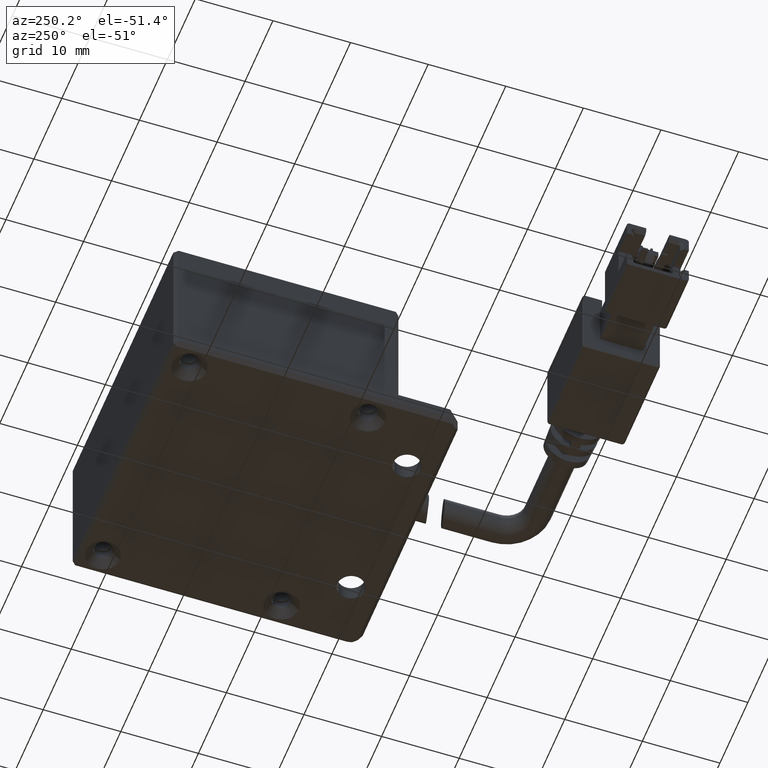
[diagram: clean part render]
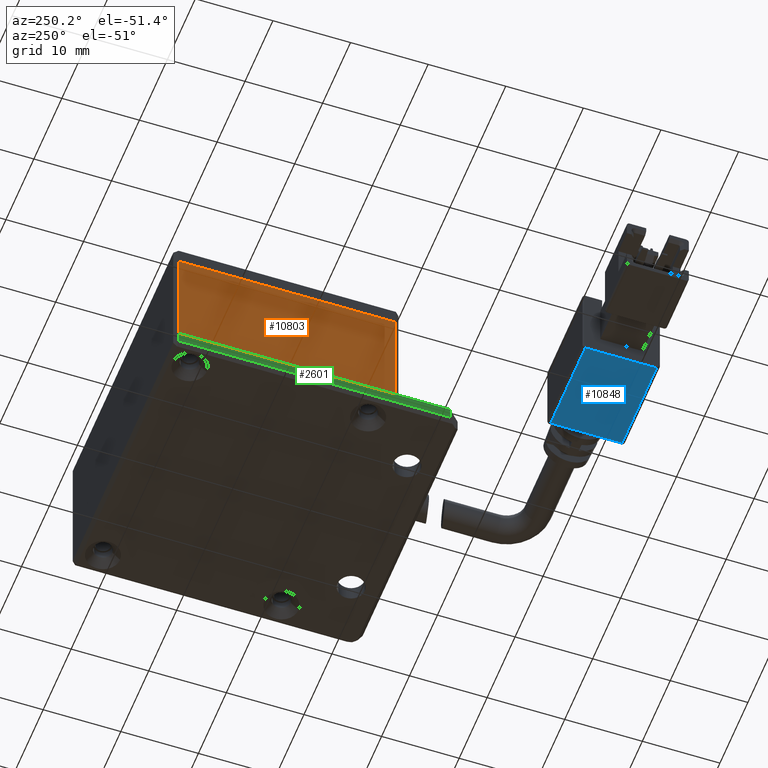
[diagram: same view with three faces highlighted in distinct colors, each labeled with its STEP entity id]
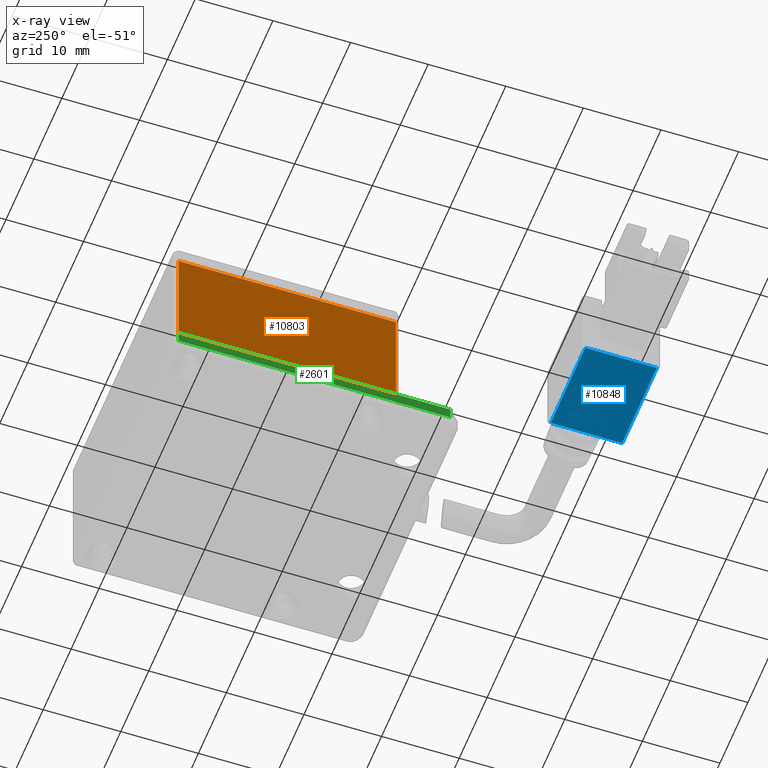
[diagram: x-ray of the same camera — body ghosted, the three highlighted faces saturated]
A machine part, auxiliary view with three faces highlighted in distinct colors.
The next image is the same camera in x-ray (body ghosted, the three faces saturated) — at least one of them is partly hidden behind the body in this view.
Their STEP definitions:

[orange] entity #10803 — the highlighted planar face has unit normal (1, 0, 0).
#30 = EDGE_CURVE ( 'NONE', #5535, #9957, #2720, .T. ) ;
#77 = VECTOR ( 'NONE', #1342, 1000.000000000000000 ) ;
#174 = VECTOR ( 'NONE', #1367, 1000.000000000000000 ) ;
#422 = LINE ( 'NONE', #7304, #174 ) ;
#802 = EDGE_CURVE ( 'NONE', #3560, #9331, #8806, .T. ) ;
#1023 = PLANE ( 'NONE',  #10217 ) ;
#1342 = DIRECTION ( 'NONE',  ( 0.0000000000000000000, 0.0000000000000000000, 1.000000000000000000 ) ) ;
#1367 = DIRECTION ( 'NONE',  ( -0.0000000000000000000, -1.000000000000000000, -0.0000000000000000000 ) ) ;
#1670 = ORIENTED_EDGE ( 'NONE', *, *, #802, .T. ) ;
#2617 = DIRECTION ( 'NONE',  ( 0.0000000000000000000, 0.0000000000000000000, -1.000000000000000000 ) ) ;
#2720 = LINE ( 'NONE', #4748, #7202 ) ;
#2739 = DIRECTION ( 'NONE',  ( 0.0000000000000000000, 0.0000000000000000000, -1.000000000000000000 ) ) ;
#3160 = CARTESIAN_POINT ( 'NONE',  ( 0.0000000000000000000, 0.0000000000000000000, 0.0000000000000000000 ) ) ;
#3560 = VERTEX_POINT ( 'NONE', #10887 ) ;
#3855 = LINE ( 'NONE', #3160, #5865 ) ;
#3999 = DIRECTION ( 'NONE',  ( -0.0000000000000000000, -1.000000000000000000, -0.0000000000000000000 ) ) ;
#4094 = EDGE_CURVE ( 'NONE', #5535, #9331, #422, .T. ) ;
#4399 = ORIENTED_EDGE ( 'NONE', *, *, #30, .T. ) ;
#4748 = CARTESIAN_POINT ( 'NONE',  ( 0.0000000000000000000, 28.49999999999999300, 13.99999999999999800 ) ) ;
#5535 = VERTEX_POINT ( 'NONE', #5789 ) ;
#5599 = EDGE_LOOP ( 'NONE', ( #10324, #4399, #7335, #1670 ) ) ;
#5716 = CARTESIAN_POINT ( 'NONE',  ( 0.0000000000000000000, 0.5000000000000004400, 13.99999999999999800 ) ) ;
#5789 = CARTESIAN_POINT ( 'NONE',  ( -3.469446951953614200E-015, 28.49999999999998200, 13.99999999999999800 ) ) ;
#5865 = VECTOR ( 'NONE', #3999, 1000.000000000000000 ) ;
#6951 = CARTESIAN_POINT ( 'NONE',  ( 0.0000000000000000000, 0.0000000000000000000, 13.99999999999999800 ) ) ;
#7202 = VECTOR ( 'NONE', #2617, 1000.000000000000000 ) ;
#7304 = CARTESIAN_POINT ( 'NONE',  ( 0.0000000000000000000, 0.0000000000000000000, 13.99999999999999800 ) ) ;
#7335 = ORIENTED_EDGE ( 'NONE', *, *, #7712, .T. ) ;
#7477 = CARTESIAN_POINT ( 'NONE',  ( -3.469446951953614200E-015, 28.49999999999998200, 0.0000000000000000000 ) ) ;
#7712 = EDGE_CURVE ( 'NONE', #9957, #3560, #3855, .T. ) ;
#7801 = DIRECTION ( 'NONE',  ( 1.000000000000000000, 0.0000000000000000000, 0.0000000000000000000 ) ) ;
#8139 = CARTESIAN_POINT ( 'NONE',  ( 0.0000000000000000000, 0.5000000000000004400, 13.99999999999999800 ) ) ;
#8806 = LINE ( 'NONE', #8139, #77 ) ;
#8944 = FACE_OUTER_BOUND ( 'NONE', #5599, .T. ) ;
#9331 = VERTEX_POINT ( 'NONE', #5716 ) ;
#9957 = VERTEX_POINT ( 'NONE', #7477 ) ;
#10217 = AXIS2_PLACEMENT_3D ( 'NONE', #6951, #7801, #2739 ) ;
#10324 = ORIENTED_EDGE ( 'NONE', *, *, #4094, .F. ) ;
#10803 = ADVANCED_FACE ( 'NONE', ( #8944 ), #1023, .F. ) ;
#10887 = CARTESIAN_POINT ( 'NONE',  ( 0.0000000000000000000, 0.5000000000000004400, 0.0000000000000000000 ) ) ;

[blue] entity #10848 — the highlighted planar face has unit normal (-0, 0, 1).
#54 = DIRECTION ( 'NONE',  ( 8.673617379884036700E-017, -0.0000000000000000000, 1.000000000000000000 ) ) ;
#515 = LINE ( 'NONE', #10553, #3056 ) ;
#1150 = ORIENTED_EDGE ( 'NONE', *, *, #8733, .T. ) ;
#1483 = AXIS2_PLACEMENT_3D ( 'NONE', #10349, #4469, #10389 ) ;
#1636 = ORIENTED_EDGE ( 'NONE', *, *, #6255, .T. ) ;
#1917 = PLANE ( 'NONE',  #1483 ) ;
#1925 = CARTESIAN_POINT ( 'NONE',  ( -5.000000000000009800, 12.79999999999999900, -4.600000000000011200 ) ) ;
#2453 = CARTESIAN_POINT ( 'NONE',  ( -5.000000000000008900, 12.79999999999999900, 4.599999999999989900 ) ) ;
#2588 = VERTEX_POINT ( 'NONE', #1925 ) ;
#2849 = DIRECTION ( 'NONE',  ( -8.673617379884036700E-017, -0.0000000000000000000, -1.000000000000000000 ) ) ;
#3056 = VECTOR ( 'NONE', #8018, 1000.000000000000000 ) ;
#4328 = EDGE_CURVE ( 'NONE', #2588, #7743, #4808, .T. ) ;
#4469 = DIRECTION ( 'NONE',  ( 1.000000000000000000, 0.0000000000000000000, -8.673617379884036700E-017 ) ) ;
#4536 = VERTEX_POINT ( 'NONE', #2453 ) ;
#4808 = LINE ( 'NONE', #10647, #7077 ) ;
#5503 = VECTOR ( 'NONE', #2849, 1000.000000000000000 ) ;
#5521 = CARTESIAN_POINT ( 'NONE',  ( -5.000000000000008900, 0.3999999999999993000, 4.599999999999990800 ) ) ;
#5569 = DIRECTION ( 'NONE',  ( 0.0000000000000000000, -1.000000000000000000, 0.0000000000000000000 ) ) ;
#5890 = EDGE_CURVE ( 'NONE', #4536, #2588, #10027, .T. ) ;
#5981 = VERTEX_POINT ( 'NONE', #5521 ) ;
#6160 = ORIENTED_EDGE ( 'NONE', *, *, #5890, .T. ) ;
#6255 = EDGE_CURVE ( 'NONE', #7743, #5981, #8569, .T. ) ;
#6285 = VECTOR ( 'NONE', #54, 1000.000000000000000 ) ;
#7054 = CARTESIAN_POINT ( 'NONE',  ( -5.000000000000009800, 12.79999999999999900, -4.600000000000011200 ) ) ;
#7077 = VECTOR ( 'NONE', #5569, 1000.000000000000000 ) ;
#7493 = ORIENTED_EDGE ( 'NONE', *, *, #4328, .T. ) ;
#7664 = CARTESIAN_POINT ( 'NONE',  ( -5.000000000000009800, 0.3999999999999993000, -5.000000000000011500 ) ) ;
#7743 = VERTEX_POINT ( 'NONE', #10829 ) ;
#7769 = EDGE_LOOP ( 'NONE', ( #1150, #6160, #7493, #1636 ) ) ;
#8018 = DIRECTION ( 'NONE',  ( -0.0000000000000000000, 1.000000000000000000, -0.0000000000000000000 ) ) ;
#8569 = LINE ( 'NONE', #7664, #6285 ) ;
#8694 = FACE_OUTER_BOUND ( 'NONE', #7769, .T. ) ;
#8733 = EDGE_CURVE ( 'NONE', #5981, #4536, #515, .T. ) ;
#10027 = LINE ( 'NONE', #7054, #5503 ) ;
#10349 = CARTESIAN_POINT ( 'NONE',  ( -5.000000000000009800, 13.00000000000000000, -5.000000000000011500 ) ) ;
#10389 = DIRECTION ( 'NONE',  ( -8.673617379884036700E-017, 0.0000000000000000000, -1.000000000000000000 ) ) ;
#10553 = CARTESIAN_POINT ( 'NONE',  ( -5.000000000000008900, 13.00000000000000000, 4.599999999999989900 ) ) ;
#10647 = CARTESIAN_POINT ( 'NONE',  ( -5.000000000000009800, 13.00000000000000000, -4.600000000000011200 ) ) ;
#10829 = CARTESIAN_POINT ( 'NONE',  ( -5.000000000000009800, 0.3999999999999993000, -4.600000000000011200 ) ) ;
#10848 = ADVANCED_FACE ( 'NONE', ( #8694 ), #1917, .F. ) ;

[green] entity #2601 — the highlighted planar face has unit normal (1, 0, -0).
#22 = CARTESIAN_POINT ( 'NONE',  ( -0.2066533027873033700, -5.421010862427522200E-017, 1.499999999999999600 ) ) ;
#258 = VERTEX_POINT ( 'NONE', #22 ) ;
#455 = CARTESIAN_POINT ( 'NONE',  ( -1.706653302787311400, 0.0000000000000000000, 0.0000000000000000000 ) ) ;
#835 = VERTEX_POINT ( 'NONE', #6391 ) ;
#871 = LINE ( 'NONE', #10812, #5129 ) ;
#1037 = VECTOR ( 'NONE', #3492, 1000.000000000000000 ) ;
#1282 = CARTESIAN_POINT ( 'NONE',  ( 34.79334669721268400, 0.0000000000000000000, 1.499999999999999600 ) ) ;
#1312 = DIRECTION ( 'NONE',  ( 1.000000000000000000, 0.0000000000000000000, 0.0000000000000000000 ) ) ;
#1577 = VECTOR ( 'NONE', #1312, 1000.000000000000000 ) ;
#2046 = EDGE_CURVE ( 'NONE', #6191, #835, #5814, .T. ) ;
#2364 = VECTOR ( 'NONE', #6174, 1000.000000000000000 ) ;
#2601 = ADVANCED_FACE ( 'NONE', ( #7291 ), #6995, .F. ) ;
#2725 = ORIENTED_EDGE ( 'NONE', *, *, #10315, .T. ) ;
#3492 = DIRECTION ( 'NONE',  ( 0.0000000000000000000, 0.0000000000000000000, -1.000000000000000000 ) ) ;
#3579 = EDGE_LOOP ( 'NONE', ( #2725, #8403, #7483, #4579 ) ) ;
#3688 = EDGE_CURVE ( 'NONE', #835, #6942, #871, .T. ) ;
#4207 = CARTESIAN_POINT ( 'NONE',  ( -0.2066533027873034800, 0.0000000000000000000, 0.0000000000000000000 ) ) ;
#4579 = ORIENTED_EDGE ( 'NONE', *, *, #3688, .T. ) ;
#5129 = VECTOR ( 'NONE', #8295, 1000.000000000000000 ) ;
#5135 = AXIS2_PLACEMENT_3D ( 'NONE', #6120, #10396, #5309 ) ;
#5309 = DIRECTION ( 'NONE',  ( 0.0000000000000000000, -0.0000000000000000000, 1.000000000000000000 ) ) ;
#5814 = LINE ( 'NONE', #455, #1577 ) ;
#6120 = CARTESIAN_POINT ( 'NONE',  ( -1.706653302787311400, 0.0000000000000000000, 2.000000000000000000 ) ) ;
#6174 = DIRECTION ( 'NONE',  ( -1.000000000000000000, 0.0000000000000000000, 0.0000000000000000000 ) ) ;
#6191 = VERTEX_POINT ( 'NONE', #4207 ) ;
#6391 = CARTESIAN_POINT ( 'NONE',  ( 34.79334669721268400, 0.0000000000000000000, 0.0000000000000000000 ) ) ;
#6594 = LINE ( 'NONE', #7926, #2364 ) ;
#6942 = VERTEX_POINT ( 'NONE', #1282 ) ;
#6995 = PLANE ( 'NONE',  #5135 ) ;
#7291 = FACE_OUTER_BOUND ( 'NONE', #3579, .T. ) ;
#7483 = ORIENTED_EDGE ( 'NONE', *, *, #2046, .T. ) ;
#7926 = CARTESIAN_POINT ( 'NONE',  ( -1.706653302787311400, 0.0000000000000000000, 1.499999999999999600 ) ) ;
#8295 = DIRECTION ( 'NONE',  ( 0.0000000000000000000, 0.0000000000000000000, 1.000000000000000000 ) ) ;
#8403 = ORIENTED_EDGE ( 'NONE', *, *, #9571, .T. ) ;
#9366 = CARTESIAN_POINT ( 'NONE',  ( -0.2066533027873032600, 0.0000000000000000000, 2.000000000000000000 ) ) ;
#9571 = EDGE_CURVE ( 'NONE', #258, #6191, #10045, .T. ) ;
#10045 = LINE ( 'NONE', #9366, #1037 ) ;
#10315 = EDGE_CURVE ( 'NONE', #6942, #258, #6594, .T. ) ;
#10396 = DIRECTION ( 'NONE',  ( 0.0000000000000000000, 1.000000000000000000, 0.0000000000000000000 ) ) ;
#10812 = CARTESIAN_POINT ( 'NONE',  ( 34.79334669721268400, 0.0000000000000000000, 2.000000000000000000 ) ) ;